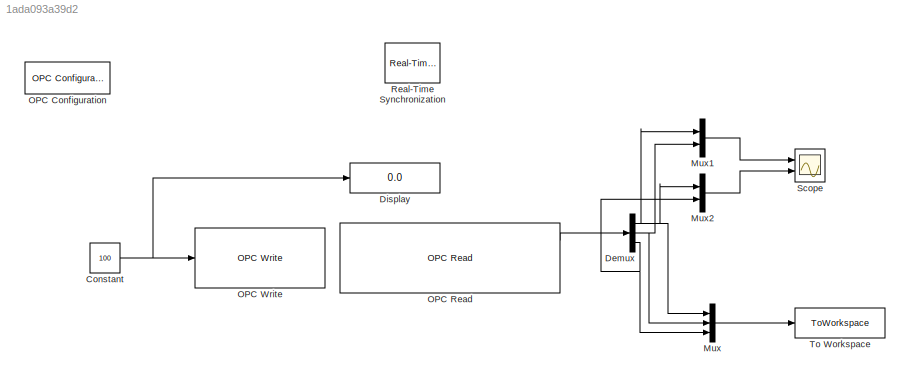
MODEL slx_1ada093a39d2
KIND model
CONFIG AbsTol = auto
CONFIG EnableMultiTasking = off
CONFIG FixedStep = auto
CONFIG MaxStep = auto
CONFIG MinStep = auto
CONFIG RelTol = 1e-3
CONFIG SampleTimeConstraint = Unconstrained
CONFIG SolverName = VariableStepAuto
CONFIG StartTime = 0.0
CONFIG StopTime = inf
BLOCK [Constant] Constant
  Value = 100
BLOCK [Demux] Demux
  Outputs = 3
  Ports = [1, 3]
BLOCK [Display] Display
  Decimation = 1
  Ports = [1]
BLOCK [Mux] Mux
  DisplayOption = bar
  Inputs = 3
  Ports = [3, 1]
BLOCK [Mux] Mux1
  DisplayOption = bar
  Inputs = 2
  Ports = [2, 1]
BLOCK [Mux] Mux2
  DisplayOption = bar
  Inputs = 2
  Ports = [2, 1]
BLOCK [Reference] OPC Configuration  REF=opclib/OPC Configuration
  Ports = []
  SourceBlock = opclib/OPC Configuration
  SourceProductBaseCode = OT
  SourceType = OPC Configuration
BLOCK [Reference] OPC Read  REF=opclib/OPC Read
  Ports = [0, 3]
  SourceBlock = opclib/OPC Read
  SourceProductBaseCode = OT
  SourceType = OPC Read
BLOCK [Reference] OPC Write  REF=opclib/OPC Write
  Ports = [1]
  SourceBlock = opclib/OPC Write
  SourceProductBaseCode = OT
  SourceType = OPC Write
BLOCK [Reference] Real-Time Synchronization  REF=sldrtlib/Real-Time
Synchronization
  Ports = []
  SourceBlock = sldrtlib/Real-Time\nSynchronization
  SourceProductBaseCode = WT
  SourceType = Simulink Desktop Real-Time Synchronization
BLOCK [Scope] Scope
  Floating = off
  NumInputPorts = 2
  Ports = [2]
  ScopeSpecificationString = Simulink.scopes.TimeScopeBlockCfg('CurrentConfiguration', extmgr.ConfigurationSet(extmgr.Configuration('Core','General UI',true),extmgr.Configuration('Core','Source UI',true),extmgr.Configuration('Sources','WiredSimulink',true),extmgr.Configuration('Visuals','Time Domain',true,'SerializedDisplays',{struct('MinYLimReal','-8.00000','MaxYLimReal','112.00000','YLabelReal','','MinYLimMag','0.00000','Ma...<+2039ch>
BLOCK [ToWorkspace] To Workspace
  FixptAsFi = on
  MaxDataPoints = inf
  Ports = [1]
  SampleTime = -1
  SaveFormat = Timeseries
  VariableName = simout
NET Constant:1 -> Display:1, OPC Write:1
NET Demux:1 -> Mux1:1, Mux2:1, Mux:1
NET Demux:2 -> Mux1:2, Mux:2
NET Demux:3 -> Mux2:2, Mux:3
LINE Mux1:1 -> Scope:1
LINE Mux2:1 -> Scope:2
LINE Mux:1 -> To Workspace:1
LINE OPC Read:1 -> Demux:1
note: NET lines group one-source signal fan-out (src -> all destinations, sorted); 1:1 wires keep LINE
